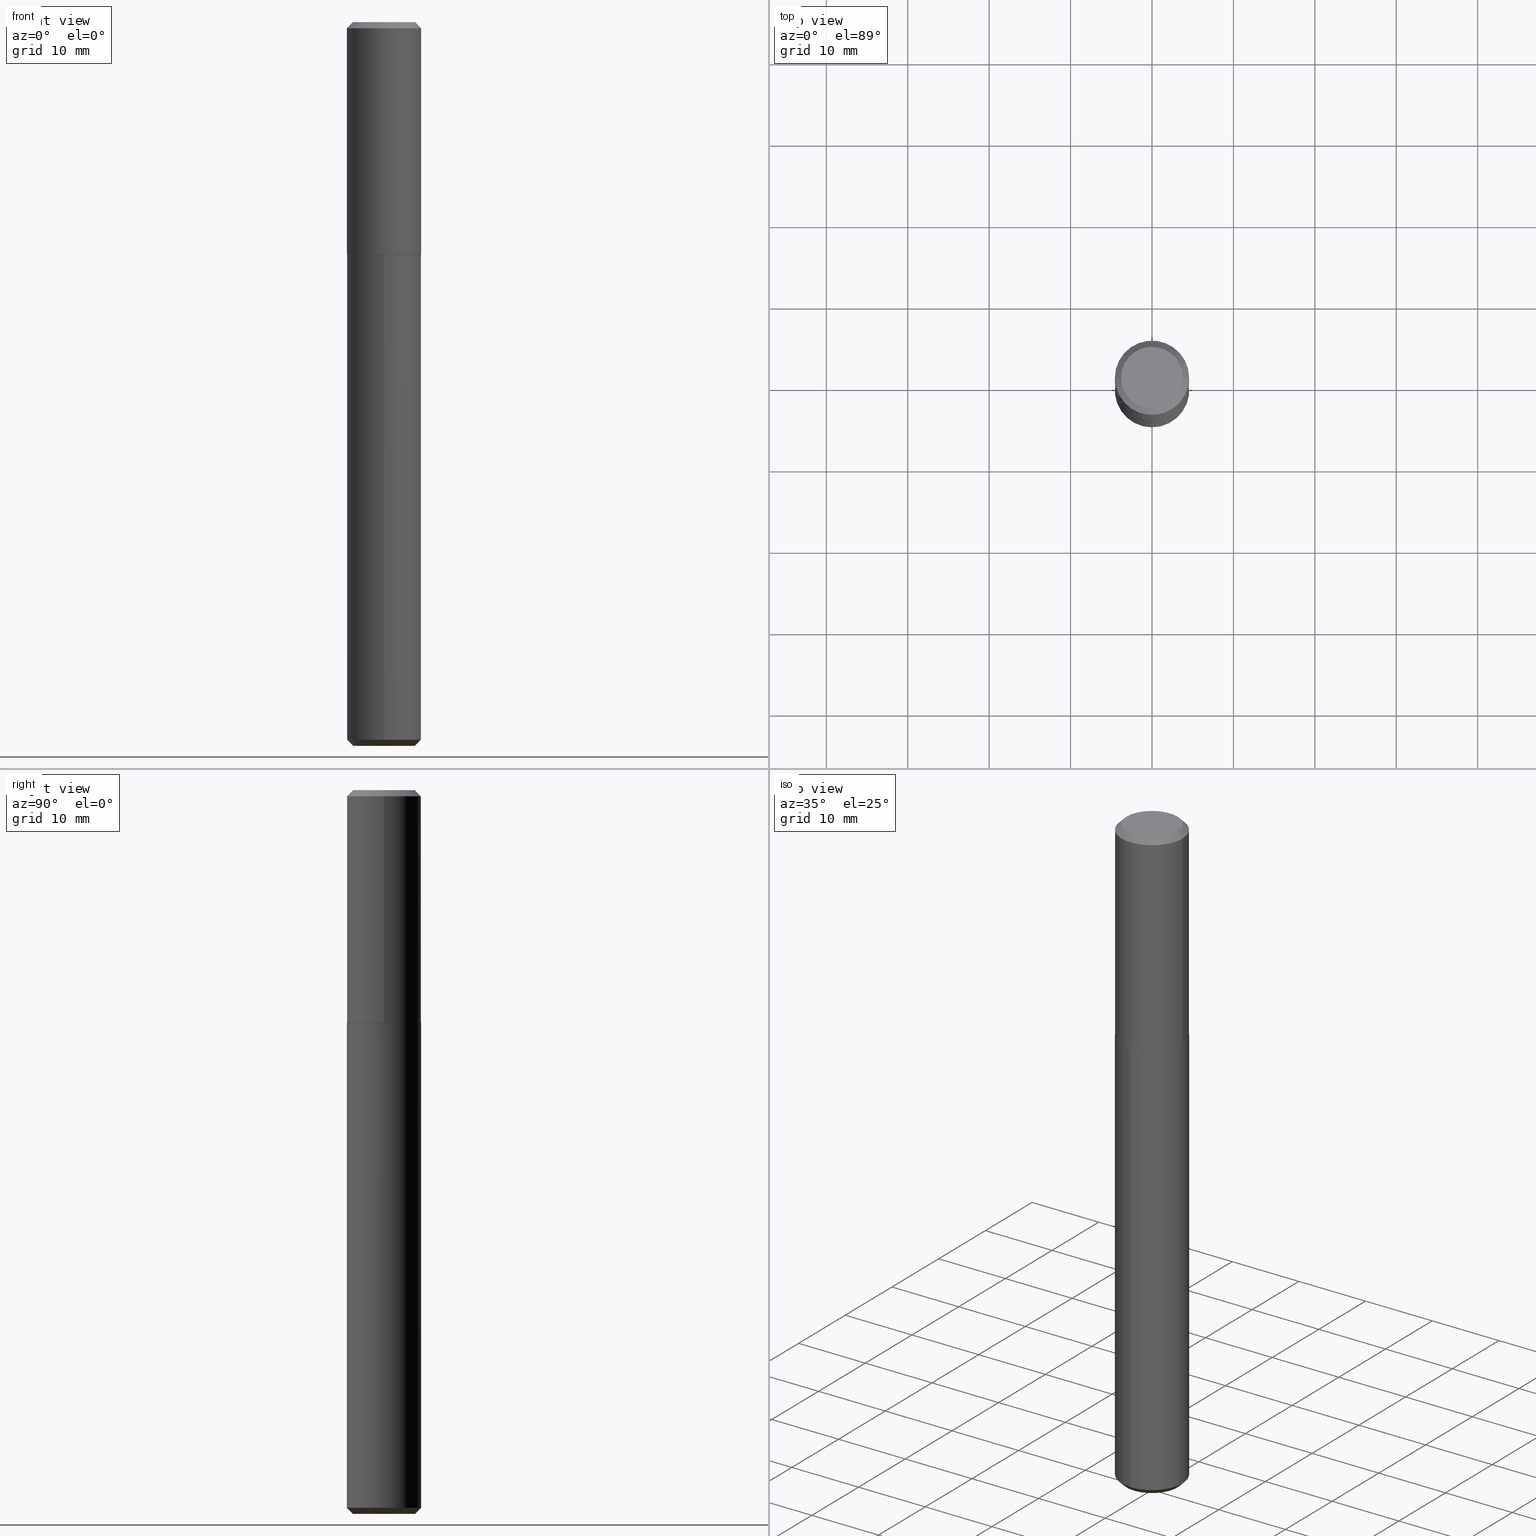
[diagram: canonical four-view strip — front | top / right | iso, engineering-drawing reading convention]
A machine part, canonical four-view strip (front | top / right | iso — engineering-drawing reading convention). The complete STEP part file that produces these views, byte-faithful:
ISO-10303-21;
HEADER;
FILE_DESCRIPTION (( 'STEP AP203' ),
    '1' );
FILE_NAME ('70023.STEP',
    '2024-04-19T13:35:53',
    ( '' ),
    ( '' ),
    'SwSTEP 2.0',
    'SolidWorks 2023',
    '' );
FILE_SCHEMA (( 'CONFIG_CONTROL_DESIGN' ));
ENDSEC;

DATA;
#1 = APPROVAL_STATUS ( 'not_yet_approved' ) ;
#2 = ORIENTED_EDGE ( 'NONE', *, *, #387, .T. ) ;
#3 = FACE_OUTER_BOUND ( 'NONE', #191, .T. ) ;
#4 = FACE_OUTER_BOUND ( 'NONE', #17, .T. ) ;
#5 = ORIENTED_EDGE ( 'NONE', *, *, #339, .F. ) ;
#6 = DIRECTION ( 'NONE',  ( 1.000000000000000000, -6.982962677686264344E-15, 0.000000000000000000 ) ) ;
#7 = EDGE_CURVE ( 'NONE', #156, #246, #59, .T. ) ;
#8 = DATE_AND_TIME ( #124, #146 ) ;
#9 = ORIENTED_EDGE ( 'NONE', *, *, #310, .F. ) ;
#10 = DIRECTION ( 'NONE',  ( -6.982962677686265922E-15, -1.000000000000000000, 3.040454083098790380E-15 ) ) ;
#11 = AXIS2_PLACEMENT_3D ( 'NONE', #389, #350, #94 ) ;
#12 = DIRECTION ( 'NONE',  ( 0.000000000000000000, 0.000000000000000000, 1.000000000000000000 ) ) ;
#13 = ORIENTED_EDGE ( 'NONE', *, *, #339, .T. ) ;
#14 = CYLINDRICAL_SURFACE ( 'NONE', #284, 0.1797000000000000541 ) ;
#15 = DIRECTION ( 'NONE',  ( 2.445468806185136597E-29, -3.491481338843145583E-15, -1.000000000000000000 ) ) ;
#16 = CALENDAR_DATE ( 2024, 19, 4 ) ;
#17 = EDGE_LOOP ( 'NONE', ( #29, #289, #368, #396 ) ) ;
#18 = LINE ( 'NONE', #57, #398 ) ;
#19 = LINE ( 'NONE', #399, #273 ) ;
#20 = PERSON_AND_ORGANIZATION ( #410, #121 ) ;
#21 = VERTEX_POINT ( 'NONE', #381 ) ;
#22 = DIRECTION ( 'NONE',  ( 2.438088387897960049E-29, -3.491481338843145188E-15, -1.000000000000000000 ) ) ;
#23 = PERSON_AND_ORGANIZATION ( #410, #121 ) ;
#24 = AXIS2_PLACEMENT_3D ( 'NONE', #42, #261, #79 ) ;
#25 = DIRECTION ( 'NONE',  ( -1.000000000000000000, 6.982962677686265922E-15, -4.876176775795935793E-29 ) ) ;
#26 = LENGTH_MEASURE_WITH_UNIT ( LENGTH_MEASURE( 0.02539999999999999897 ), #382 );
#27 = APPROVAL ( #51, 'UNSPECIFIED' ) ;
#28 = CARTESIAN_POINT ( 'NONE',  ( 2.749929672555185870E-29, -3.926170765529116932E-15, -1.124499999999999833 ) ) ;
#29 = ORIENTED_EDGE ( 'NONE', *, *, #387, .F. ) ;
#30 = AXIS2_PLACEMENT_3D ( 'NONE', #46, #15, #245 ) ;
#31 = ADVANCED_FACE ( 'NONE', ( #213 ), #178, .F. ) ;
#32 = EDGE_CURVE ( 'NONE', #67, #70, #376, .T. ) ;
#33 = CARTESIAN_POINT ( 'NONE',  ( 7.336406418555460973E-31, -1.047444401652950952E-16, -0.03000000000000021053 ) ) ;
#34 = ORIENTED_EDGE ( 'NONE', *, *, #32, .F. ) ;
#35 = VECTOR ( 'NONE', #149, 39.37007874015748143 ) ;
#36 = CARTESIAN_POINT ( 'NONE',  ( -1.254838393180137519E-15, -0.1797000000000121833, -3.469999999999999307 ) ) ;
#37 = APPROVAL_ROLE ( '' ) ;
#38 = VECTOR ( 'NONE', #277, 39.37007874015748143 ) ;
#39 = CARTESIAN_POINT ( 'NONE',  ( 0.1797000000000000541, -1.254838393180222519E-15, 8.762489666105299848E-30 ) ) ;
#40 = ADVANCED_FACE ( 'NONE', ( #80 ), #184, .T. ) ;
#41 = ORIENTED_EDGE ( 'NONE', *, *, #305, .F. ) ;
#42 = CARTESIAN_POINT ( 'NONE',  ( 2.751152406958278111E-29, -3.927916506198538435E-15, -1.124999999999999778 ) ) ;
#43 = DIRECTION ( 'NONE',  ( 1.000000000000000000, -6.982962677686265133E-15, 0.000000000000000000 ) ) ;
#44 = EDGE_LOOP ( 'NONE', ( #301, #229 ) ) ;
#45 = CARTESIAN_POINT ( 'NONE',  ( 8.486087693353520127E-29, -1.211499496789229457E-14, -3.469999999999999751 ) ) ;
#46 = CARTESIAN_POINT ( 'NONE',  ( 7.336406418555460973E-31, -1.047444401652950952E-16, -0.03000000000000021053 ) ) ;
#47 = PERSON_AND_ORGANIZATION ( #410, #121 ) ;
#48 = ORIENTED_EDGE ( 'NONE', *, *, #361, .F. ) ;
#49 = CARTESIAN_POINT ( 'NONE',  ( -0.1496999999999999997, 1.097721732932280493E-15, 9.552245033274444849E-19 ) ) ;
#50 = CARTESIAN_POINT ( 'NONE',  ( 0.1792000000000002480, -5.179263418039917947E-15, -1.124999999999999556 ) ) ;
#51 = APPROVAL_STATUS ( 'not_yet_approved' ) ;
#52 = ORIENTED_EDGE ( 'NONE', *, *, #127, .T. ) ;
#53 = DIRECTION ( 'NONE',  ( -2.438088387897960049E-29, 3.491481338843145188E-15, 1.000000000000000000 ) ) ;
#54 = PERSON_AND_ORGANIZATION ( #410, #121 ) ;
#55 = CC_DESIGN_PERSON_AND_ORGANIZATION_ASSIGNMENT ( #47, #165, ( #163 ) ) ;
#56 = CC_DESIGN_APPROVAL ( #27, ( #163 ) ) ;
#57 = CARTESIAN_POINT ( 'NONE',  ( -0.1797000000000000541, 1.276845296160900419E-15, -8.839326357188068388E-30 ) ) ;
#58 = ORIENTED_EDGE ( 'NONE', *, *, #414, .F. ) ;
#59 = LINE ( 'NONE', #408, #392 ) ;
#60 = DIRECTION ( 'NONE',  ( -2.445601401447863561E-29, 3.491291454880066432E-15, 1.000000000000000000 ) ) ;
#61 = EDGE_CURVE ( 'NONE', #272, #246, #200, .T. ) ;
#62 = MANIFOLD_SOLID_BREP ( 'Body-Move/Copy2[1]', #205 ) ;
#63 = VECTOR ( 'NONE', #264, 39.37007874015748143 ) ;
#64 = AXIS2_PLACEMENT_3D ( 'NONE', #196, #369, #397 ) ;
#65 = CIRCLE ( 'NONE', #220, 0.1496999999999999997 ) ;
#66 = ORIENTED_EDGE ( 'NONE', *, *, #413, .T. ) ;
#67 = VERTEX_POINT ( 'NONE', #338 ) ;
#68 = LINE ( 'NONE', #39, #227 ) ;
#69 = EDGE_CURVE ( 'NONE', #402, #106, #141, .T. ) ;
#70 = VERTEX_POINT ( 'NONE', #49 ) ;
#71 = DIRECTION ( 'NONE',  ( -2.445468806185136597E-29, 3.491481338843145583E-15, 1.000000000000000000 ) ) ;
#72 = AXIS2_PLACEMENT_3D ( 'NONE', #281, #108, #270 ) ;
#73 = MANIFOLD_SOLID_BREP ( 'Body-Move/Copy2[2]', #152 ) ;
#74 = EDGE_LOOP ( 'NONE', ( #133, #111, #155, #161 ) ) ;
#75 = FACE_OUTER_BOUND ( 'NONE', #394, .T. ) ;
#76 = DIRECTION ( 'NONE',  ( 1.000000000000000000, -6.982962677686266711E-15, 4.876176775795936353E-29 ) ) ;
#77 = COORDINATED_UNIVERSAL_TIME_OFFSET ( 5, 0, .BEHIND. ) ;
#78 = ORIENTED_EDGE ( 'NONE', *, *, #182, .T. ) ;
#79 = DIRECTION ( 'NONE',  ( -6.982962677686265922E-15, -1.000000000000000000, 3.800567603873488271E-15 ) ) ;
#80 = FACE_OUTER_BOUND ( 'NONE', #166, .T. ) ;
#81 = AXIS2_PLACEMENT_3D ( 'NONE', #333, #370, #210 ) ;
#82 = CIRCLE ( 'NONE', #219, 0.1792000000000002480 ) ;
#83 = DATE_AND_TIME ( #367, #351 ) ;
#84 = VERTEX_POINT ( 'NONE', #341 ) ;
#85 = CARTESIAN_POINT ( 'NONE',  ( -2.335971725809280860E-47, 3.335148527799648041E-33, 9.552245033349378931E-19 ) ) ;
#86 = DIRECTION ( 'NONE',  ( -2.445468806185136597E-29, 3.491481338843145583E-15, 1.000000000000000000 ) ) ;
#87 =( NAMED_UNIT ( * ) PLANE_ANGLE_UNIT ( ) SI_UNIT ( $, .RADIAN. ) );
#88 = CARTESIAN_POINT ( 'NONE',  ( -0.1792000000000002480, -2.651974696542326334E-15, -1.124999999999999556 ) ) ;
#89 = APPROVAL_DATE_TIME ( #83, #266 ) ;
#90 = DIRECTION ( 'NONE',  ( 1.000000000000000000, -6.982962677686264344E-15, 0.000000000000000000 ) ) ;
#91 = ADVANCED_FACE ( 'NONE', ( #411 ), #112, .F. ) ;
#92 = DIRECTION ( 'NONE',  ( -6.982962677686265922E-15, -1.000000000000000000, 3.800567603873488271E-15 ) ) ;
#93 = CC_DESIGN_APPROVAL ( #266, ( #347 ) ) ;
#94 = DIRECTION ( 'NONE',  ( -6.982962677686265922E-15, -1.000000000000000000, 3.800567603873488271E-15 ) ) ;
#95 = AXIS2_PLACEMENT_3D ( 'NONE', #374, #201, #90 ) ;
#96 = EDGE_CURVE ( 'NONE', #21, #137, #362, .T. ) ;
#97 = EDGE_CURVE ( 'NONE', #106, #293, #412, .T. ) ;
#98 = EDGE_LOOP ( 'NONE', ( #303, #400, #393, #232 ) ) ;
#99 = EDGE_LOOP ( 'NONE', ( #335, #258, #223, #237 ) ) ;
#100 = CARTESIAN_POINT ( 'NONE',  ( 0.000000000000000000, 0.000000000000000000, 0.000000000000000000 ) ) ;
#101 = CC_DESIGN_APPROVAL ( #235, ( #282 ) ) ;
#102 = DIRECTION ( 'NONE',  ( -2.445468806185136597E-29, 3.491481338843145583E-15, 1.000000000000000000 ) ) ;
#103 = AXIS2_PLACEMENT_3D ( 'NONE', #183, #185, #356 ) ;
#104 = FACE_OUTER_BOUND ( 'NONE', #131, .T. ) ;
#105 = PERSON_AND_ORGANIZATION_ROLE ( 'creator' ) ;
#106 = VERTEX_POINT ( 'NONE', #383 ) ;
#107 = FACE_OUTER_BOUND ( 'NONE', #188, .T. ) ;
#108 = DIRECTION ( 'NONE',  ( -2.445468806185136597E-29, 3.491481338843145583E-15, 1.000000000000000000 ) ) ;
#109 = CARTESIAN_POINT ( 'NONE',  ( 7.336406418555460973E-31, -1.047444401652950952E-16, -0.03000000000000021053 ) ) ;
#110 = PERSON_AND_ORGANIZATION ( #410, #121 ) ;
#111 = ORIENTED_EDGE ( 'NONE', *, *, #61, .T. ) ;
#112 = PLANE ( 'NONE',  #168 ) ;
#113 = DIRECTION ( 'NONE',  ( 1.000000000000000000, -6.982962677686265922E-15, 0.000000000000000000 ) ) ;
#114 = CIRCLE ( 'NONE', #407, 0.1797000000000001374 ) ;
#115 = APPROVAL_DATE_TIME ( #406, #27 ) ;
#116 = DIRECTION ( 'NONE',  ( -4.937700262164551986E-15, -0.7071067811865456854, 0.7071067811865493491 ) ) ;
#117 = PRODUCT_DEFINITION_SHAPE ( 'NONE', 'NONE',  #347 ) ;
#118 = EDGE_CURVE ( 'NONE', #70, #67, #65, .T. ) ;
#119 = DIRECTION ( 'NONE',  ( -6.982962677686265922E-15, -1.000000000000000000, 3.649763518589529841E-15 ) ) ;
#120 = DIRECTION ( 'NONE',  ( -2.445601401447863841E-29, 3.491291454880066432E-15, 1.000000000000000000 ) ) ;
#121 = ORGANIZATION ( 'UNSPECIFIED', 'UNSPECIFIED', '' ) ;
#122 = DIRECTION ( 'NONE',  ( -2.445468806185136877E-29, 3.491481338843145188E-15, 1.000000000000000000 ) ) ;
#123 = DIRECTION ( 'NONE',  ( 6.982962677686265922E-15, 1.000000000000000000, -3.491291454880066432E-15 ) ) ;
#124 = CALENDAR_DATE ( 2024, 19, 4 ) ;
#125 = DIRECTION ( 'NONE',  ( -6.982962677686265922E-15, -1.000000000000000000, 3.649763518589529841E-15 ) ) ;
#126 = VECTOR ( 'NONE', #164, 39.37007874015748143 ) ;
#127 = EDGE_CURVE ( 'NONE', #293, #84, #18, .T. ) ;
#128 = CONICAL_SURFACE ( 'NONE', #72, 0.1797000000000001374, 0.7853981633975849475 ) ;
#129 = DATE_TIME_ROLE ( 'classification_date' ) ;
#130 = DIRECTION ( 'NONE',  ( -2.445601401447863841E-29, 3.491291454880066432E-15, 1.000000000000000000 ) ) ;
#131 = EDGE_LOOP ( 'NONE', ( #34, #269, #66, #355 ) ) ;
#132 = CYLINDRICAL_SURFACE ( 'NONE', #64, 0.1796999999999999986 ) ;
#133 = ORIENTED_EDGE ( 'NONE', *, *, #144, .F. ) ;
#134 = CARTESIAN_POINT ( 'NONE',  ( 0.1796999999999999986, -1.359582833345517072E-15, -0.03000000000000021053 ) ) ;
#135 = CC_DESIGN_PERSON_AND_ORGANIZATION_ASSIGNMENT ( #20, #136, ( #344 ) ) ;
#136 = PERSON_AND_ORGANIZATION_ROLE ( 'design_owner' ) ;
#137 = VERTEX_POINT ( 'NONE', #148 ) ;
#138 = CARTESIAN_POINT ( 'NONE',  ( -0.1796999999999999986, 1.150093953014926980E-15, -0.03000000000000021053 ) ) ;
#139 = AXIS2_PLACEMENT_3D ( 'NONE', #33, #286, #390 ) ;
#140 = ORIENTED_EDGE ( 'NONE', *, *, #144, .T. ) ;
#141 = LINE ( 'NONE', #343, #375 ) ;
#142 = COORDINATED_UNIVERSAL_TIME_OFFSET ( 5, 0, .BEHIND. ) ;
#143 = DIRECTION ( 'NONE',  ( -2.445468806185136597E-29, 3.491481338843145583E-15, 1.000000000000000000 ) ) ;
#144 = EDGE_CURVE ( 'NONE', #272, #137, #409, .T. ) ;
#145 = LINE ( 'NONE', #267, #38 ) ;
#146 = LOCAL_TIME ( 9, 35, 53.00000000000000000, #288 ) ;
#147 = PERSON_AND_ORGANIZATION ( #410, #121 ) ;
#148 = CARTESIAN_POINT ( 'NONE',  ( 1.276845296160985024E-15, 0.1796999999999960851, -1.125000000000000666 ) ) ;
#149 = DIRECTION ( 'NONE',  ( -2.445601401447864121E-29, 3.491291454880066432E-15, 1.000000000000000000 ) ) ;
#150 = DIRECTION ( 'NONE',  ( -2.445468806185136877E-29, 3.491481338843145188E-15, 1.000000000000000000 ) ) ;
#151 = CC_DESIGN_PERSON_AND_ORGANIZATION_ASSIGNMENT ( #241, #379, ( #163 ) ) ;
#152 = CLOSED_SHELL ( 'NONE', ( #349, #316, #40, #31, #154, #404, #225, #91 ) ) ;
#153 = ADVANCED_BREP_SHAPE_REPRESENTATION ( '70023', ( #62, #73, #177 ), #247 ) ;
#154 = ADVANCED_FACE ( 'NONE', ( #279 ), #128, .T. ) ;
#155 = ORIENTED_EDGE ( 'NONE', *, *, #414, .T. ) ;
#156 = VERTEX_POINT ( 'NONE', #403 ) ;
#157 = SHAPE_DEFINITION_REPRESENTATION ( #117, #153 ) ;
#158 = DIRECTION ( 'NONE',  ( 2.445601401447863561E-29, -3.491291454880066432E-15, -1.000000000000000000 ) ) ;
#159 = APPROVAL_PERSON_ORGANIZATION ( #54, #27, #170 ) ;
#160 = CARTESIAN_POINT ( 'NONE',  ( 8.486087693353520127E-29, -1.211499496789229457E-14, -3.469999999999999751 ) ) ;
#161 = ORIENTED_EDGE ( 'NONE', *, *, #294, .F. ) ;
#162 = DIRECTION ( 'NONE',  ( -2.445601401447863841E-29, 3.491291454880066432E-15, 1.000000000000000000 ) ) ;
#163 = PRODUCT_DEFINITION_FORMATION_WITH_SPECIFIED_SOURCE ( 'ANY', '', #344, .NOT_KNOWN. ) ;
#164 = DIRECTION ( 'NONE',  ( -2.445601401447864121E-29, 3.491291454880066432E-15, 1.000000000000000000 ) ) ;
#165 = PERSON_AND_ORGANIZATION_ROLE ( 'creator' ) ;
#166 = EDGE_LOOP ( 'NONE', ( #13, #291, #357, #328 ) ) ;
#167 = CARTESIAN_POINT ( 'NONE',  ( 2.751152406958278111E-29, -3.927916506198538435E-15, -1.124999999999999778 ) ) ;
#168 = AXIS2_PLACEMENT_3D ( 'NONE', #175, #22, #25 ) ;
#169 = CARTESIAN_POINT ( 'NONE',  ( 1.170263885796970099E-15, 0.1496999999999877595, -3.500000000000000444 ) ) ;
#170 = APPROVAL_ROLE ( '' ) ;
#171 = ORIENTED_EDGE ( 'NONE', *, *, #294, .T. ) ;
#172 = DIRECTION ( 'NONE',  ( -2.445468806185136597E-29, 3.491481338843145583E-15, 1.000000000000000000 ) ) ;
#173 = ADVANCED_FACE ( 'NONE', ( #208 ), #336, .F. ) ;
#174 = CARTESIAN_POINT ( 'NONE',  ( 0.000000000000000000, 0.000000000000000000, 0.000000000000000000 ) ) ;
#175 = CARTESIAN_POINT ( 'NONE',  ( -1.167985862904640430E-47, 1.667574263899824020E-33, 4.776122516674689466E-19 ) ) ;
#176 = CARTESIAN_POINT ( 'NONE',  ( 2.751152406958277550E-29, -3.927916506198537646E-15, -1.124999999999999556 ) ) ;
#177 = AXIS2_PLACEMENT_3D ( 'NONE', #174, #12, #268 ) ;
#178 = PLANE ( 'NONE',  #318 ) ;
#179 = DIRECTION ( 'NONE',  ( -2.445468806185136597E-29, 3.491481338843145583E-15, 1.000000000000000000 ) ) ;
#180 = AXIS2_PLACEMENT_3D ( 'NONE', #234, #172, #308 ) ;
#181 = AXIS2_PLACEMENT_3D ( 'NONE', #252, #158, #123 ) ;
#182 = EDGE_CURVE ( 'NONE', #156, #372, #250, .T. ) ;
#183 = CARTESIAN_POINT ( 'NONE',  ( 8.486087693353520127E-29, -1.211499496789229457E-14, -3.469999999999999751 ) ) ;
#184 = CONICAL_SURFACE ( 'NONE', #95, 0.1797000000000001374, 0.7853981633975849475 ) ;
#185 = DIRECTION ( 'NONE',  ( -2.445601401447863841E-29, 3.491291454880066432E-15, 1.000000000000000000 ) ) ;
#186 = AXIS2_PLACEMENT_3D ( 'NONE', #45, #162, #395 ) ;
#187 = EDGE_LOOP ( 'NONE', ( #221, #320 ) ) ;
#188 = EDGE_LOOP ( 'NONE', ( #78, #2, #9, #195 ) ) ;
#189 = CIRCLE ( 'NONE', #358, 0.1792000000000002480 ) ;
#190 = ADVANCED_FACE ( 'NONE', ( #3 ), #348, .F. ) ;
#191 = EDGE_LOOP ( 'NONE', ( #222, #171 ) ) ;
#192 = CARTESIAN_POINT ( 'NONE',  ( 8.559455735396955084E-29, -1.221973371153869488E-14, -3.500000000000000000 ) ) ;
#193 = ADVANCED_FACE ( 'NONE', ( #4 ), #287, .T. ) ;
#194 = PERSON_AND_ORGANIZATION ( #410, #121 ) ;
#195 = ORIENTED_EDGE ( 'NONE', *, *, #7, .F. ) ;
#196 = CARTESIAN_POINT ( 'NONE',  ( 2.751152406958278111E-29, -3.927916506198538435E-15, -1.124999999999999778 ) ) ;
#197 = CARTESIAN_POINT ( 'NONE',  ( -1.254838393180194515E-15, -0.1797000000000039122, -1.124999999999999112 ) ) ;
#198 = DATE_TIME_ROLE ( 'creation_date' ) ;
#199 = ORIENTED_EDGE ( 'NONE', *, *, #69, .T. ) ;
#200 = CIRCLE ( 'NONE', #81, 0.1796999999999999986 ) ;
#201 = DIRECTION ( 'NONE',  ( -2.445468806185136597E-29, 3.491481338843145583E-15, 1.000000000000000000 ) ) ;
#202 = CIRCLE ( 'NONE', #215, 0.1496999999999999997 ) ;
#203 = CC_DESIGN_SECURITY_CLASSIFICATION ( #282, ( #163 ) ) ;
#204 = DIRECTION ( 'NONE',  ( -2.445468806185136597E-29, 3.491481338843145583E-15, 1.000000000000000000 ) ) ;
#205 = CLOSED_SHELL ( 'NONE', ( #278, #257, #193, #244, #190, #173 ) ) ;
#206 = COORDINATED_UNIVERSAL_TIME_OFFSET ( 5, 0, .BEHIND. ) ;
#207 = ORIENTED_EDGE ( 'NONE', *, *, #310, .T. ) ;
#208 = FACE_OUTER_BOUND ( 'NONE', #187, .T. ) ;
#209 = DIRECTION ( 'NONE',  ( 1.000000000000000000, -6.982962677686265922E-15, 4.876176775795935793E-29 ) ) ;
#210 = DIRECTION ( 'NONE',  ( -6.982962677686265922E-15, -1.000000000000000000, 3.040454083098790380E-15 ) ) ;
#211 = DIRECTION ( 'NONE',  ( -6.982962677686265922E-15, -1.000000000000000000, 3.491291454880066432E-15 ) ) ;
#212 = LOCAL_TIME ( 9, 35, 53.00000000000000000, #292 ) ;
#213 = FACE_OUTER_BOUND ( 'NONE', #256, .T. ) ;
#214 = AXIS2_PLACEMENT_3D ( 'NONE', #160, #259, #10 ) ;
#215 = AXIS2_PLACEMENT_3D ( 'NONE', #192, #329, #119 ) ;
#216 = EDGE_CURVE ( 'NONE', #106, #263, #68, .T. ) ;
#217 = LINE ( 'NONE', #249, #342 ) ;
#218 = EDGE_CURVE ( 'NONE', #67, #263, #217, .T. ) ;
#219 = AXIS2_PLACEMENT_3D ( 'NONE', #331, #102, #365 ) ;
#220 = AXIS2_PLACEMENT_3D ( 'NONE', #85, #179, #314 ) ;
#221 = ORIENTED_EDGE ( 'NONE', *, *, #182, .F. ) ;
#222 = ORIENTED_EDGE ( 'NONE', *, *, #96, .T. ) ;
#223 = ORIENTED_EDGE ( 'NONE', *, *, #216, .T. ) ;
#224 = DIRECTION ( 'NONE',  ( 1.000000000000000000, -6.982962677686266711E-15, 4.876176775795936353E-29 ) ) ;
#225 = ADVANCED_FACE ( 'NONE', ( #319 ), #322, .T. ) ;
#226 = LOCAL_TIME ( 9, 35, 53.00000000000000000, #142 ) ;
#227 = VECTOR ( 'NONE', #122, 39.37007874015748143 ) ;
#228 = AXIS2_PLACEMENT_3D ( 'NONE', #28, #143, #302 ) ;
#229 = ORIENTED_EDGE ( 'NONE', *, *, #32, .T. ) ;
#230 = CARTESIAN_POINT ( 'NONE',  ( -0.1797000000000001374, -2.649325469368215527E-15, -1.124499999999999833 ) ) ;
#231 = APPLICATION_PROTOCOL_DEFINITION ( 'international standard', 'config_control_design', 1994, #290 ) ;
#232 = ORIENTED_EDGE ( 'NONE', *, *, #380, .T. ) ;
#233 = CARTESIAN_POINT ( 'NONE',  ( 1.276845296160984235E-15, 0.1796999999999878139, -3.470000000000000195 ) ) ;
#234 = CARTESIAN_POINT ( 'NONE',  ( -2.335971725809280860E-47, 3.335148527799648041E-33, 9.552245033349378931E-19 ) ) ;
#235 = APPROVAL ( #1, 'UNSPECIFIED' ) ;
#236 = DIRECTION ( 'NONE',  ( -2.445468806185136597E-29, 3.491481338843145583E-15, 1.000000000000000000 ) ) ;
#237 = ORIENTED_EDGE ( 'NONE', *, *, #380, .F. ) ;
#238 = DIRECTION ( 'NONE',  ( 0.7071067811866441621, -2.468850131083269169E-15, 0.7071067811864508723 ) ) ;
#239 = CIRCLE ( 'NONE', #186, 0.1796999999999999986 ) ;
#240 = DIRECTION ( 'NONE',  ( 5.024295867788066334E-15, 0.7071067811865505703, 0.7071067811865444641 ) ) ;
#241 = PERSON_AND_ORGANIZATION ( #410, #121 ) ;
#242 = CARTESIAN_POINT ( 'NONE',  ( 0.000000000000000000, 0.000000000000000000, 0.000000000000000000 ) ) ;
#243 = APPLICATION_PROTOCOL_DEFINITION ( 'international standard', 'config_control_design', 1994, #315 ) ;
#244 = ADVANCED_FACE ( 'NONE', ( #416 ), #321, .T. ) ;
#245 = DIRECTION ( 'NONE',  ( -1.000000000000000000, 6.982962677686265922E-15, 0.000000000000000000 ) ) ;
#246 = VERTEX_POINT ( 'NONE', #36 ) ;
#247 =( GEOMETRIC_REPRESENTATION_CONTEXT ( 3 ) GLOBAL_UNCERTAINTY_ASSIGNED_CONTEXT ( ( #354 ) ) GLOBAL_UNIT_ASSIGNED_CONTEXT ( ( #340, #87, #371 ) ) REPRESENTATION_CONTEXT ( 'NONE', 'WORKASPACE' ) );
#248 = EDGE_CURVE ( 'NONE', #70, #84, #296, .T. ) ;
#249 = CARTESIAN_POINT ( 'NONE',  ( 0.1796999999999999986, -1.337575930364839173E-15, -0.03000000000000021053 ) ) ;
#250 = CIRCLE ( 'NONE', #377, 0.1496999999999999997 ) ;
#251 = AXIS2_PLACEMENT_3D ( 'NONE', #265, #60, #211 ) ;
#252 = CARTESIAN_POINT ( 'NONE',  ( 2.751152406958278111E-29, -3.927916506198538435E-15, -1.124999999999999778 ) ) ;
#253 = CALENDAR_DATE ( 2024, 19, 4 ) ;
#254 = CIRCLE ( 'NONE', #317, 0.1796999999999999986 ) ;
#255 = DESIGN_CONTEXT ( 'detailed design', #315, 'design' ) ;
#256 = EDGE_LOOP ( 'NONE', ( #5, #41 ) ) ;
#257 = ADVANCED_FACE ( 'NONE', ( #107 ), #345, .T. ) ;
#258 = ORIENTED_EDGE ( 'NONE', *, *, #324, .T. ) ;
#259 = DIRECTION ( 'NONE',  ( -2.445601401447863841E-29, 3.491291454880066432E-15, 1.000000000000000000 ) ) ;
#260 = ORIENTED_EDGE ( 'NONE', *, *, #96, .F. ) ;
#261 = DIRECTION ( 'NONE',  ( -2.445601401447863841E-29, 3.491291454880066432E-15, 1.000000000000000000 ) ) ;
#262 = APPROVAL_STATUS ( 'not_yet_approved' ) ;
#263 = VERTEX_POINT ( 'NONE', #134 ) ;
#264 = DIRECTION ( 'NONE',  ( -0.7071067811865451302, 2.468850131082231817E-15, -0.7071067811865499042 ) ) ;
#265 = CARTESIAN_POINT ( 'NONE',  ( 8.559140821647976968E-29, -1.222018468595100934E-14, -3.500000000000000000 ) ) ;
#266 = APPROVAL ( #262, 'UNSPECIFIED' ) ;
#267 = CARTESIAN_POINT ( 'NONE',  ( -0.1797000000000001374, -2.649325469368215527E-15, -1.124499999999999833 ) ) ;
#268 = DIRECTION ( 'NONE',  ( 1.000000000000000000, 0.000000000000000000, 0.000000000000000000 ) ) ;
#269 = ORIENTED_EDGE ( 'NONE', *, *, #218, .T. ) ;
#270 = DIRECTION ( 'NONE',  ( 1.000000000000000000, -6.982962677686264344E-15, 0.000000000000000000 ) ) ;
#271 = CALENDAR_DATE ( 2024, 19, 4 ) ;
#272 = VERTEX_POINT ( 'NONE', #233 ) ;
#273 = VECTOR ( 'NONE', #240, 39.37007874015748143 ) ;
#274 = LINE ( 'NONE', #197, #126 ) ;
#275 = PERSON_AND_ORGANIZATION_ROLE ( 'classification_officer' ) ;
#276 = CC_DESIGN_PERSON_AND_ORGANIZATION_ASSIGNMENT ( #23, #105, ( #347 ) ) ;
#277 = DIRECTION ( 'NONE',  ( -0.7071067811866441621, 7.493145998870704414E-15, 0.7071067811864508723 ) ) ;
#278 = ADVANCED_FACE ( 'NONE', ( #75 ), #132, .T. ) ;
#279 = FACE_OUTER_BOUND ( 'NONE', #364, .T. ) ;
#280 = DIMENSIONAL_EXPONENTS ( 1.000000000000000000, 0.000000000000000000, 0.000000000000000000, 0.000000000000000000, 0.000000000000000000, 0.000000000000000000, 0.000000000000000000 ) ;
#281 = CARTESIAN_POINT ( 'NONE',  ( 2.749929672555185870E-29, -3.926170765529116932E-15, -1.124499999999999833 ) ) ;
#282 = SECURITY_CLASSIFICATION ( '', '', #307 ) ;
#283 = CARTESIAN_POINT ( 'NONE',  ( 8.559455735396955084E-29, -1.221973371153869488E-14, -3.500000000000000000 ) ) ;
#284 = AXIS2_PLACEMENT_3D ( 'NONE', #100, #401, #224 ) ;
#285 = CC_DESIGN_DATE_AND_TIME_ASSIGNMENT ( #334, #198, ( #347 ) ) ;
#286 = DIRECTION ( 'NONE',  ( 2.445468806185136597E-29, -3.491481338843145583E-15, -1.000000000000000000 ) ) ;
#287 = CONICAL_SURFACE ( 'NONE', #103, 0.1796999999999999986, 0.7853981633974491672 ) ;
#288 = COORDINATED_UNIVERSAL_TIME_OFFSET ( 5, 0, .BEHIND. ) ;
#289 = ORIENTED_EDGE ( 'NONE', *, *, #325, .T. ) ;
#290 = APPLICATION_CONTEXT ( 'configuration controlled 3d designs of mechanical parts and assemblies' ) ;
#291 = ORIENTED_EDGE ( 'NONE', *, *, #361, .T. ) ;
#292 = COORDINATED_UNIVERSAL_TIME_OFFSET ( 5, 0, .BEHIND. ) ;
#293 = VERTEX_POINT ( 'NONE', #230 ) ;
#294 = EDGE_CURVE ( 'NONE', #137, #21, #386, .T. ) ;
#295 = ORIENTED_EDGE ( 'NONE', *, *, #97, .T. ) ;
#296 = LINE ( 'NONE', #138, #63 ) ;
#297 = ORIENTED_EDGE ( 'NONE', *, *, #324, .F. ) ;
#298 = FACE_OUTER_BOUND ( 'NONE', #363, .T. ) ;
#299 = CONICAL_SURFACE ( 'NONE', #30, 0.1796999999999999986, 0.7853981633974449483 ) ;
#300 = APPROVAL_ROLE ( '' ) ;
#301 = ORIENTED_EDGE ( 'NONE', *, *, #118, .T. ) ;
#302 = DIRECTION ( 'NONE',  ( 1.000000000000000000, -6.982962677686264344E-15, 0.000000000000000000 ) ) ;
#303 = ORIENTED_EDGE ( 'NONE', *, *, #218, .F. ) ;
#304 = CARTESIAN_POINT ( 'NONE',  ( 2.751152406958278111E-29, -3.927916506198537646E-15, -1.124999999999999778 ) ) ;
#305 = EDGE_CURVE ( 'NONE', #330, #402, #82, .T. ) ;
#306 = DIRECTION ( 'NONE',  ( 1.000000000000000000, -6.982962677686265922E-15, 0.000000000000000000 ) ) ;
#307 = SECURITY_CLASSIFICATION_LEVEL ( 'unclassified' ) ;
#308 = DIRECTION ( 'NONE',  ( 1.000000000000000000, -6.982962677686265922E-15, 4.876153293444285073E-29 ) ) ;
#309 = AXIS2_PLACEMENT_3D ( 'NONE', #242, #366, #76 ) ;
#310 = EDGE_CURVE ( 'NONE', #246, #272, #239, .T. ) ;
#311 = FACE_OUTER_BOUND ( 'NONE', #99, .T. ) ;
#312 = AXIS2_PLACEMENT_3D ( 'NONE', #167, #120, #92 ) ;
#313 = CARTESIAN_POINT ( 'NONE',  ( 1.276845296160927240E-15, 0.1796999999999960851, -1.125000000000000666 ) ) ;
#314 = DIRECTION ( 'NONE',  ( 1.000000000000000000, -6.982962677686265922E-15, 4.876153293444285073E-29 ) ) ;
#315 = APPLICATION_CONTEXT ( 'configuration controlled 3d designs of mechanical parts and assemblies' ) ;
#316 = ADVANCED_FACE ( 'NONE', ( #298 ), #14, .T. ) ;
#317 = AXIS2_PLACEMENT_3D ( 'NONE', #109, #236, #113 ) ;
#318 = AXIS2_PLACEMENT_3D ( 'NONE', #304, #53, #209 ) ;
#319 = FACE_OUTER_BOUND ( 'NONE', #98, .T. ) ;
#320 = ORIENTED_EDGE ( 'NONE', *, *, #325, .F. ) ;
#321 = CYLINDRICAL_SURFACE ( 'NONE', #11, 0.1796999999999999986 ) ;
#322 = CONICAL_SURFACE ( 'NONE', #139, 0.1796999999999999986, 0.7853981633974449483 ) ;
#323 = DATE_AND_TIME ( #253, #212 ) ;
#324 = EDGE_CURVE ( 'NONE', #293, #106, #114, .T. ) ;
#325 = EDGE_CURVE ( 'NONE', #372, #156, #202, .T. ) ;
#326 = AXIS2_PLACEMENT_3D ( 'NONE', #405, #86, #306 ) ;
#327 = APPROVAL_DATE_TIME ( #323, #235 ) ;
#328 = ORIENTED_EDGE ( 'NONE', *, *, #69, .F. ) ;
#329 = DIRECTION ( 'NONE',  ( -2.445601401447863841E-29, 3.491291454880066432E-15, 1.000000000000000000 ) ) ;
#330 = VERTEX_POINT ( 'NONE', #88 ) ;
#331 = CARTESIAN_POINT ( 'NONE',  ( 2.751152406958277550E-29, -3.927916506198537646E-15, -1.124999999999999556 ) ) ;
#332 = ORIENTED_EDGE ( 'NONE', *, *, #305, .T. ) ;
#333 = CARTESIAN_POINT ( 'NONE',  ( 8.486087693353520127E-29, -1.211499496789229457E-14, -3.469999999999999751 ) ) ;
#334 = DATE_AND_TIME ( #16, #415 ) ;
#335 = ORIENTED_EDGE ( 'NONE', *, *, #127, .F. ) ;
#336 = PLANE ( 'NONE',  #251 ) ;
#337 = MECHANICAL_CONTEXT ( 'NONE', #290, 'mechanical' ) ;
#338 = CARTESIAN_POINT ( 'NONE',  ( 0.1496999999999999997, -1.182296240315618899E-15, 9.552245033427269316E-19 ) ) ;
#339 = EDGE_CURVE ( 'NONE', #402, #330, #189, .T. ) ;
#340 =( CONVERSION_BASED_UNIT ( 'INCH', #26 ) LENGTH_UNIT ( ) NAMED_UNIT ( #280 ) );
#341 = CARTESIAN_POINT ( 'NONE',  ( -0.1796999999999999986, -7.386123066863051264E-16, -0.03000000000000021053 ) ) ;
#342 = VECTOR ( 'NONE', #388, 39.37007874015748143 ) ;
#343 = CARTESIAN_POINT ( 'NONE',  ( 0.1797000000000001374, -5.181009158709339451E-15, -1.124499999999999833 ) ) ;
#344 = PRODUCT ( '70023', '70023', '', ( #337 ) ) ;
#345 = CONICAL_SURFACE ( 'NONE', #214, 0.1796999999999999986, 0.7853981633974491672 ) ;
#346 = APPROVAL_PERSON_ORGANIZATION ( #110, #266, #300 ) ;
#347 = PRODUCT_DEFINITION ( 'UNKNOWN', '', #163, #255 ) ;
#348 = PLANE ( 'NONE',  #181 ) ;
#349 = ADVANCED_FACE ( 'NONE', ( #104 ), #299, .T. ) ;
#350 = DIRECTION ( 'NONE',  ( -2.445601401447863841E-29, 3.491291454880066432E-15, 1.000000000000000000 ) ) ;
#351 = LOCAL_TIME ( 9, 35, 53.00000000000000000, #206 ) ;
#352 = ORIENTED_EDGE ( 'NONE', *, *, #216, .F. ) ;
#353 = CC_DESIGN_DATE_AND_TIME_ASSIGNMENT ( #8, #129, ( #282 ) ) ;
#354 = UNCERTAINTY_MEASURE_WITH_UNIT (LENGTH_MEASURE( 1.000000000000000082E-05 ), #340, 'distance_accuracy_value', 'NONE');
#355 = ORIENTED_EDGE ( 'NONE', *, *, #248, .F. ) ;
#356 = DIRECTION ( 'NONE',  ( -6.982962677686265922E-15, -1.000000000000000000, 3.040454083098790380E-15 ) ) ;
#357 = ORIENTED_EDGE ( 'NONE', *, *, #97, .F. ) ;
#358 = AXIS2_PLACEMENT_3D ( 'NONE', #176, #204, #43 ) ;
#359 = ORIENTED_EDGE ( 'NONE', *, *, #413, .F. ) ;
#360 = CARTESIAN_POINT ( 'NONE',  ( 2.749929672555185870E-29, -3.926170765529116932E-15, -1.124499999999999833 ) ) ;
#361 = EDGE_CURVE ( 'NONE', #330, #293, #145, .T. ) ;
#362 = CIRCLE ( 'NONE', #312, 0.1796999999999999986 ) ;
#363 = EDGE_LOOP ( 'NONE', ( #295, #52, #359, #352 ) ) ;
#364 = EDGE_LOOP ( 'NONE', ( #48, #332, #199, #297 ) ) ;
#365 = DIRECTION ( 'NONE',  ( 1.000000000000000000, -6.982962677686265133E-15, 0.000000000000000000 ) ) ;
#366 = DIRECTION ( 'NONE',  ( -2.445468806185136597E-29, 3.491481338843145583E-15, 1.000000000000000000 ) ) ;
#367 = CALENDAR_DATE ( 2024, 19, 4 ) ;
#368 = ORIENTED_EDGE ( 'NONE', *, *, #7, .T. ) ;
#369 = DIRECTION ( 'NONE',  ( -2.445601401447863841E-29, 3.491291454880066432E-15, 1.000000000000000000 ) ) ;
#370 = DIRECTION ( 'NONE',  ( -2.445601401447863841E-29, 3.491291454880066432E-15, 1.000000000000000000 ) ) ;
#371 =( NAMED_UNIT ( * ) SI_UNIT ( $, .STERADIAN. ) SOLID_ANGLE_UNIT ( ) );
#372 = VERTEX_POINT ( 'NONE', #169 ) ;
#373 = APPROVAL_PERSON_ORGANIZATION ( #194, #235, #37 ) ;
#374 = CARTESIAN_POINT ( 'NONE',  ( 2.749929672555185870E-29, -3.926170765529116932E-15, -1.124499999999999833 ) ) ;
#375 = VECTOR ( 'NONE', #238, 39.37007874015748143 ) ;
#376 = CIRCLE ( 'NONE', #180, 0.1496999999999999997 ) ;
#377 = AXIS2_PLACEMENT_3D ( 'NONE', #283, #130, #125 ) ;
#378 = CYLINDRICAL_SURFACE ( 'NONE', #309, 0.1797000000000000541 ) ;
#379 = PERSON_AND_ORGANIZATION_ROLE ( 'design_supplier' ) ;
#380 = EDGE_CURVE ( 'NONE', #84, #263, #254, .T. ) ;
#381 = CARTESIAN_POINT ( 'NONE',  ( -1.254838393180194515E-15, -0.1797000000000039122, -1.124999999999999112 ) ) ;
#382 =( LENGTH_UNIT ( ) NAMED_UNIT ( * ) SI_UNIT ( $, .METRE. ) );
#383 = CARTESIAN_POINT ( 'NONE',  ( 0.1797000000000001374, -5.181009158709339451E-15, -1.124499999999999833 ) ) ;
#384 = CIRCLE ( 'NONE', #326, 0.1796999999999999986 ) ;
#385 = CC_DESIGN_PERSON_AND_ORGANIZATION_ASSIGNMENT ( #147, #275, ( #282 ) ) ;
#386 = CIRCLE ( 'NONE', #24, 0.1796999999999999986 ) ;
#387 = EDGE_CURVE ( 'NONE', #372, #272, #19, .T. ) ;
#388 = DIRECTION ( 'NONE',  ( 0.7071067811865451302, -7.319954787623248157E-15, -0.7071067811865499042 ) ) ;
#389 = CARTESIAN_POINT ( 'NONE',  ( 2.751152406958278111E-29, -3.927916506198538435E-15, -1.124999999999999778 ) ) ;
#390 = DIRECTION ( 'NONE',  ( -1.000000000000000000, 6.982962677686265922E-15, 0.000000000000000000 ) ) ;
#391 = PRODUCT_RELATED_PRODUCT_CATEGORY ( 'detail', '', ( #344 ) ) ;
#392 = VECTOR ( 'NONE', #116, 39.37007874015748143 ) ;
#393 = ORIENTED_EDGE ( 'NONE', *, *, #248, .T. ) ;
#394 = EDGE_LOOP ( 'NONE', ( #207, #140, #260, #58 ) ) ;
#395 = DIRECTION ( 'NONE',  ( -6.982962677686265922E-15, -1.000000000000000000, 3.040454083098790380E-15 ) ) ;
#396 = ORIENTED_EDGE ( 'NONE', *, *, #61, .F. ) ;
#397 = DIRECTION ( 'NONE',  ( -6.982962677686265922E-15, -1.000000000000000000, 3.800567603873488271E-15 ) ) ;
#398 = VECTOR ( 'NONE', #150, 39.37007874015748143 ) ;
#399 = CARTESIAN_POINT ( 'NONE',  ( 1.276845296160984630E-15, 0.1796999999999878694, -3.470000000000000195 ) ) ;
#400 = ORIENTED_EDGE ( 'NONE', *, *, #118, .F. ) ;
#401 = DIRECTION ( 'NONE',  ( -2.445468806185136597E-29, 3.491481338843145583E-15, 1.000000000000000000 ) ) ;
#402 = VERTEX_POINT ( 'NONE', #50 ) ;
#403 = CARTESIAN_POINT ( 'NONE',  ( -1.045349512849548414E-15, -0.1497000000000122122, -3.499999999999999112 ) ) ;
#404 = ADVANCED_FACE ( 'NONE', ( #311 ), #378, .T. ) ;
#405 = CARTESIAN_POINT ( 'NONE',  ( 7.336406418555460973E-31, -1.047444401652950952E-16, -0.03000000000000021053 ) ) ;
#406 = DATE_AND_TIME ( #271, #226 ) ;
#407 = AXIS2_PLACEMENT_3D ( 'NONE', #360, #71, #6 ) ;
#408 = CARTESIAN_POINT ( 'NONE',  ( -1.254838393180137125E-15, -0.1797000000000121278, -3.469999999999999307 ) ) ;
#409 = LINE ( 'NONE', #313, #35 ) ;
#410 = PERSON ( 'UNSPECIFIED', 'UNSPECIFIED', 'UNSPECIFIED', ('UNSPECIFIED'), ('UNSPECIFIED'), ('UNSPECIFIED') ) ;
#411 = FACE_OUTER_BOUND ( 'NONE', #44, .T. ) ;
#412 = CIRCLE ( 'NONE', #228, 0.1797000000000001374 ) ;
#413 = EDGE_CURVE ( 'NONE', #263, #84, #384, .T. ) ;
#414 = EDGE_CURVE ( 'NONE', #246, #21, #274, .T. ) ;
#415 = LOCAL_TIME ( 9, 35, 53.00000000000000000, #77 ) ;
#416 = FACE_OUTER_BOUND ( 'NONE', #74, .T. ) ;
ENDSEC;
END-ISO-10303-21;
